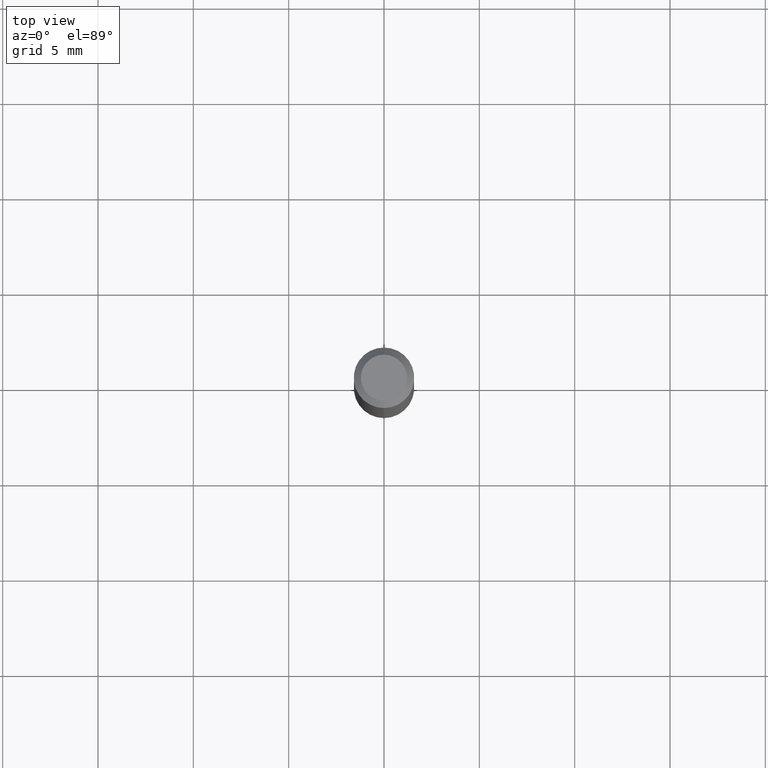
[diagram: clean part render]
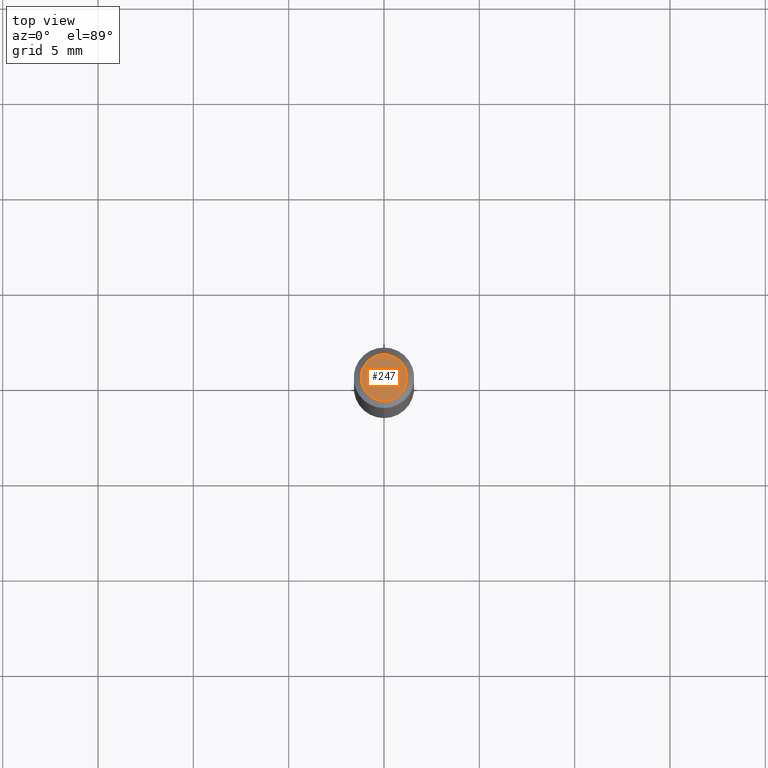
[diagram: same view with one face highlighted and labeled with its STEP entity id]
A machine part, top view. The second image highlights one B-rep face of the part: STEP entity #247.
In plain terms, the highlighted planar face has unit normal (0, -0, -1).
Its self-contained STEP definition (entity closure, byte-faithful):
#17 = DIRECTION ( 'NONE',  ( -2.443919900360709498E-29, 3.493699460141969769E-15, 1.000000000000000000 ) ) ;
#24 = DIRECTION ( 'NONE',  ( -2.443919900360709498E-29, 3.493699460141969769E-15, 1.000000000000000000 ) ) ;
#25 = VERTEX_POINT ( 'NONE', #224 ) ;
#29 = CIRCLE ( 'NONE', #154, 0.04750000000000000749 ) ;
#65 = EDGE_CURVE ( 'NONE', #25, #117, #276, .T. ) ;
#89 = EDGE_LOOP ( 'NONE', ( #133, #96 ) ) ;
#96 = ORIENTED_EDGE ( 'NONE', *, *, #65, .T. ) ;
#105 = DIRECTION ( 'NONE',  ( -6.982962677686265133E-15, -1.000000000000000000, 3.493699460141968980E-15 ) ) ;
#117 = VERTEX_POINT ( 'NONE', #447 ) ;
#133 = ORIENTED_EDGE ( 'NONE', *, *, #232, .T. ) ;
#154 = AXIS2_PLACEMENT_3D ( 'NONE', #462, #24, #105 ) ;
#159 = AXIS2_PLACEMENT_3D ( 'NONE', #503, #391, #353 ) ;
#190 = DIRECTION ( 'NONE',  ( -6.982962677686265133E-15, -1.000000000000000000, 3.493699460141968980E-15 ) ) ;
#224 = CARTESIAN_POINT ( 'NONE',  ( -3.773273898774340269E-16, -0.04750000000000000749, 4.392408844848639707E-16 ) ) ;
#228 = CARTESIAN_POINT ( 'NONE',  ( -6.678992609098783564E-45, 9.547936849017268993E-31, 2.732901601281204480E-16 ) ) ;
#232 = EDGE_CURVE ( 'NONE', #117, #25, #29, .T. ) ;
#237 = PLANE ( 'NONE',  #159 ) ;
#247 = ADVANCED_FACE ( 'NONE', ( #355 ), #237, .F. ) ;
#276 = CIRCLE ( 'NONE', #290, 0.04750000000000000749 ) ;
#290 = AXIS2_PLACEMENT_3D ( 'NONE', #228, #17, #190 ) ;
#353 = DIRECTION ( 'NONE',  ( 6.982962677686265922E-15, 1.000000000000000000, -3.493699460141969375E-15 ) ) ;
#355 = FACE_OUTER_BOUND ( 'NONE', #89, .T. ) ;
#391 = DIRECTION ( 'NONE',  ( 2.443919900360709498E-29, -3.493699460141969375E-15, -1.000000000000000000 ) ) ;
#447 = CARTESIAN_POINT ( 'NONE',  ( 3.840629472727447874E-16, 0.04750000000000000749, 1.073394357713768638E-16 ) ) ;
#462 = CARTESIAN_POINT ( 'NONE',  ( -6.678992609098783564E-45, 9.547936849017268993E-31, 2.732901601281204480E-16 ) ) ;
#503 = CARTESIAN_POINT ( 'NONE',  ( 3.316907271900976589E-16, 0.04750000000000000749, -2.930564429268336024E-17 ) ) ;